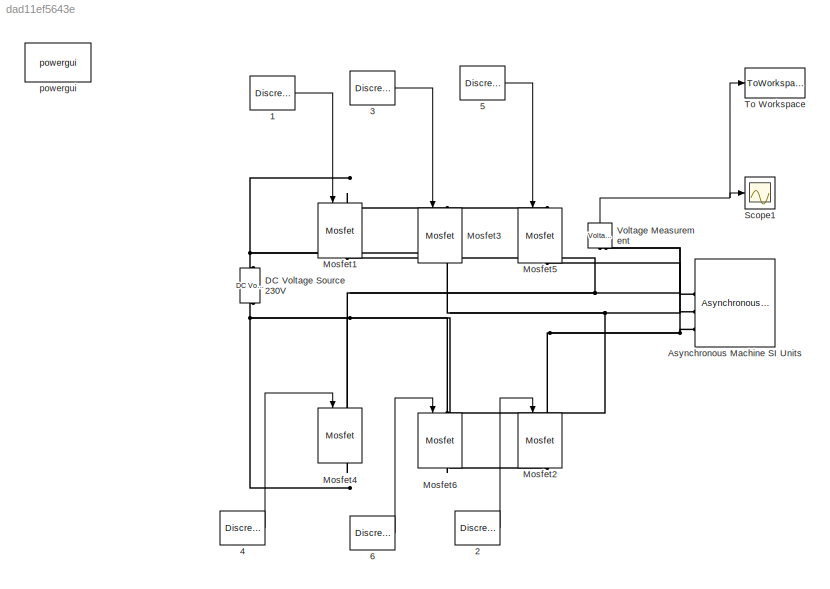
MODEL mdl_dad11ef5643e
KIND model
CONFIG AbsTol = auto
CONFIG EnableMultiTasking = on
CONFIG FixedStep = auto
CONFIG MaxStep = auto
CONFIG MinStep = auto
CONFIG RelTol = 1e-3
CONFIG SampleTimeConstraint = Unconstrained
CONFIG SolverName = ode15s
CONFIG StartTime = 0.0
CONFIG StopTime = 1
BLOCK [DiscretePulseGenerator] 1
  Amplitude = 10
  Period = 0.02
  PulseType = Time based
  PulseWidth = 33.33
BLOCK [DiscretePulseGenerator] 2
  Amplitude = 10
  Period = 0.02
  PhaseDelay = 0.0033
  PulseType = Time based
  PulseWidth = 33.33
BLOCK [DiscretePulseGenerator] 3
  Amplitude = 10
  Period = 0.02
  PhaseDelay = 0.0066
  PulseType = Time based
  PulseWidth = 33.33
BLOCK [DiscretePulseGenerator] 4
  Amplitude = 10
  Period = 0.02
  PhaseDelay = 0.01
  PulseType = Time based
  PulseWidth = 33.33
BLOCK [DiscretePulseGenerator] 5
  Amplitude = 10
  Period = 0.02
  PhaseDelay = 0.0133
  PulseType = Time based
  PulseWidth = 33.33
BLOCK [DiscretePulseGenerator] 6
  Amplitude = 10
  Period = 0.02
  PhaseDelay = 0.0166
  PulseType = Time based
  PulseWidth = 33.33
BLOCK [Reference] Asynchronous Machine SI Units  REF=spsAsynchronousMachineSIUnitsLib/Asynchronous Machine
SI Units
  LibrarySourceBlock = sps_lib/Electrical Machines/Asynchronous Machine\nSI Units
  SourceBlock = spsAsynchronousMachineSIUnitsLib/Asynchronous Machine\nSI Units
  SourceType = Asynchronous Machine
BLOCK [Reference] DC Voltage Source 230V  REF=spsDCVoltageSourceLib/DC Voltage Source
  LibrarySourceBlock = sps_lib/Sources/DC Voltage Source
  NameLocation = left
  SourceBlock = spsDCVoltageSourceLib/DC Voltage Source
  SourceType = DC Voltage Source
BLOCK [Reference] Mosfet1  REF=spsMosfetLib/Mosfet
  LibrarySourceBlock = sps_lib/Power Electronics/Mosfet
  NameLocation = left
  SourceBlock = spsMosfetLib/Mosfet
  SourceType = Mosfet
BLOCK [Reference] Mosfet2  REF=spsMosfetLib/Mosfet
  LibrarySourceBlock = sps_lib/Power Electronics/Mosfet
  NameLocation = left
  SourceBlock = spsMosfetLib/Mosfet
  SourceType = Mosfet
BLOCK [Reference] Mosfet3  REF=spsMosfetLib/Mosfet
  LibrarySourceBlock = sps_lib/Power Electronics/Mosfet
  NameLocation = left
  SourceBlock = spsMosfetLib/Mosfet
  SourceType = Mosfet
BLOCK [Reference] Mosfet4  REF=spsMosfetLib/Mosfet
  LibrarySourceBlock = sps_lib/Power Electronics/Mosfet
  NameLocation = left
  SourceBlock = spsMosfetLib/Mosfet
  SourceType = Mosfet
BLOCK [Reference] Mosfet5  REF=spsMosfetLib/Mosfet
  LibrarySourceBlock = sps_lib/Power Electronics/Mosfet
  NameLocation = left
  SourceBlock = spsMosfetLib/Mosfet
  SourceType = Mosfet
BLOCK [Reference] Mosfet6  REF=spsMosfetLib/Mosfet
  LibrarySourceBlock = sps_lib/Power Electronics/Mosfet
  NameLocation = left
  SourceBlock = spsMosfetLib/Mosfet
  SourceType = Mosfet
BLOCK [Scope] Scope1
  Floating = off
  NumInputPorts = 1
  ScopeSpecificationString = Simulink.scopes.TimeScopeBlockCfg('CurrentConfiguration', extmgr.ConfigurationSet(extmgr.Configuration('Core','General UI',true,'FigureColor',[1 1 1]),extmgr.Configuration('Core','Source UI',true),extmgr.Configuration('Sources','WiredSimulink',true,'DataLogging',true,'DataLoggingVariableName','w','DataLoggingSaveFormat','StructureWithTime','DataLoggingMaxPoints','500000000','DataLoggingLimitDataPo...<+2027ch>
BLOCK [ToWorkspace] To Workspace
  MaxDataPoints = inf
  SampleTime = -1
  SaveFormat = Structure With Time
  VariableName = v
BLOCK [Reference] Voltage Measurement  REF=spsVoltageMeasurementLib/Voltage Measurement
  LibrarySourceBlock = sps_lib/Sensors and Measurements/Voltage Measurement
  NameLocation = right
  SourceBlock = spsVoltageMeasurementLib/Voltage Measurement
  SourceType = Voltage Measurement
BLOCK [Reference] powergui  REF=sps_lib/powergui
  Priority = 1
  SourceBlock = sps_lib/powergui
  SourceType = PSB option menu block
LINE 1:1 -> Mosfet1:1
LINE 2:1 -> Mosfet2:1
LINE 3:1 -> Mosfet3:1
LINE 4:1 -> Mosfet4:1
LINE 5:1 -> Mosfet5:1
LINE 6:1 -> Mosfet6:1
NET Voltage Measurement:1 -> Scope1:1, To Workspace:1
PNET net1: Asynchronous Machine SI Units:LConn1 -- Mosfet1:RConn1 -- Mosfet4:LConn1 -- Voltage Measurement:LConn1
PNET net2: Asynchronous Machine SI Units:LConn2 -- Mosfet3:RConn1 -- Mosfet6:LConn1 -- Voltage Measurement:LConn2
PNET net3: Asynchronous Machine SI Units:LConn3 -- Mosfet2:LConn1 -- Mosfet5:RConn1
PNET net4: DC Voltage Source 230V:LConn1 -- Mosfet2:RConn1 -- Mosfet4:RConn1 -- Mosfet6:RConn1
PNET net5: DC Voltage Source 230V:RConn1 -- Mosfet1:LConn1 -- Mosfet3:LConn1 -- Mosfet5:LConn1
note: NET lines group one-source signal fan-out (src -> all destinations, sorted); 1:1 wires keep LINE; PNET lines group multi-terminal physical nets as a canonical sorted terminal list (undirected conserving connections); 2-terminal nets keep the pairwise PLINE form
